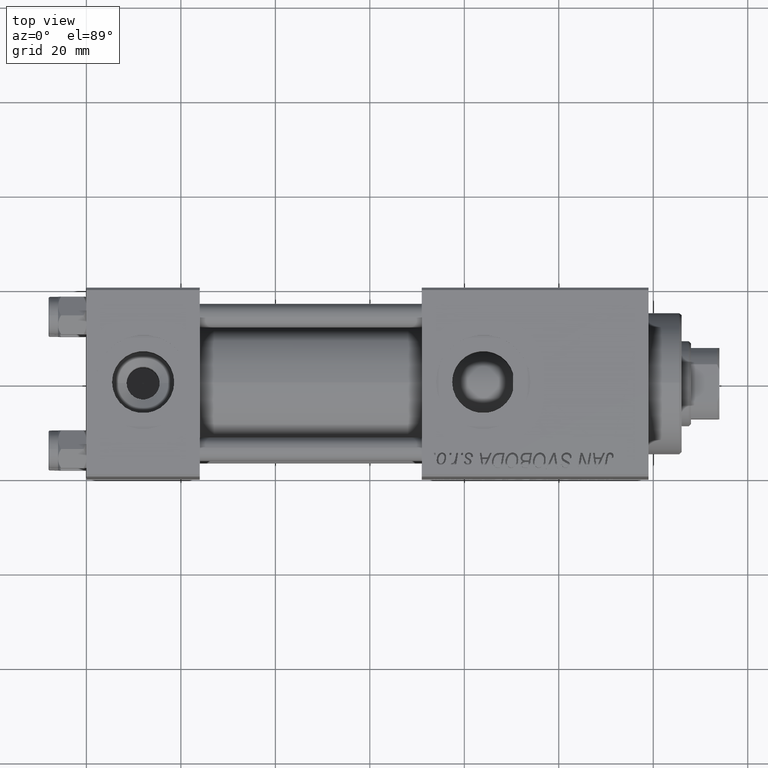
[diagram: clean part render]
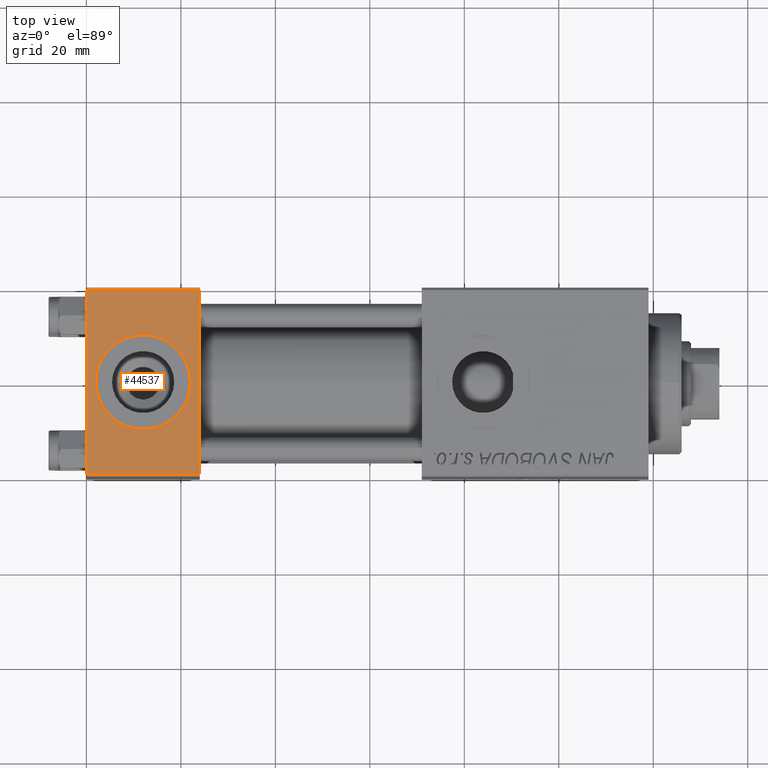
[diagram: same view with one face highlighted and labeled with its STEP entity id]
A machine part, top view. The second image highlights one B-rep face of the part: STEP entity #44537.
In plain terms, the highlighted planar face has unit normal (0, 0, -1).
Its self-contained STEP definition (entity closure, byte-faithful):
#405 = AXIS2_PLACEMENT_3D ( 'NONE', #37165, #13263, #5128 ) ;
#591 = AXIS2_PLACEMENT_3D ( 'NONE', #33102, #29175, #13141 ) ;
#720 = EDGE_CURVE ( 'NONE', #38897, #5996, #44022, .T. ) ;
#1160 = AXIS2_PLACEMENT_3D ( 'NONE', #25481, #21270, #44405 ) ;
#1687 = EDGE_CURVE ( 'NONE', #22121, #6410, #50454, .T. ) ;
#4271 = CARTESIAN_POINT ( 'NONE',  ( 2.000000000000003553, 1.224646799147354440E-15, 19.99999999999999645 ) ) ;
#4425 = VECTOR ( 'NONE', #32317, 1000.000000000000000 ) ;
#5128 = DIRECTION ( 'NONE',  ( 1.000000000000000000, 0.000000000000000000, 0.000000000000000000 ) ) ;
#5996 = VERTEX_POINT ( 'NONE', #4271 ) ;
#6410 = VERTEX_POINT ( 'NONE', #35007 ) ;
#8161 = LINE ( 'NONE', #35743, #4425 ) ;
#8227 = CARTESIAN_POINT ( 'NONE',  ( 22.00000000000000000, 1.540743955509788682E-30, 19.99999999999999645 ) ) ;
#9811 = CIRCLE ( 'NONE', #591, 9.999999999999998224 ) ;
#11047 = DIRECTION ( 'NONE',  ( 0.000000000000000000, -1.000000000000000000, -2.602085213965210149E-16 ) ) ;
#11854 = EDGE_CURVE ( 'NONE', #6410, #34470, #25421, .T. ) ;
#12708 = VECTOR ( 'NONE', #33033, 1000.000000000000000 ) ;
#13141 = DIRECTION ( 'NONE',  ( 1.000000000000000000, 0.000000000000000000, 0.000000000000000000 ) ) ;
#13263 = DIRECTION ( 'NONE',  ( 0.000000000000000000, 0.000000000000000000, 1.000000000000000000 ) ) ;
#13388 = FACE_BOUND ( 'NONE', #44826, .T. ) ;
#13955 = CARTESIAN_POINT ( 'NONE',  ( 24.00000000000000000, 20.00000000000000000, 20.00000000000000000 ) ) ;
#14472 = CARTESIAN_POINT ( 'NONE',  ( 0.000000000000000000, 20.00000000000000000, 20.00000000000000000 ) ) ;
#15117 = ORIENTED_EDGE ( 'NONE', *, *, #51403, .F. ) ;
#17359 = ORIENTED_EDGE ( 'NONE', *, *, #720, .F. ) ;
#18147 = CARTESIAN_POINT ( 'NONE',  ( 24.00000000000000000, -19.49999999999999289, 19.99999999999998934 ) ) ;
#18939 = LINE ( 'NONE', #13955, #36578 ) ;
#20501 = FACE_OUTER_BOUND ( 'NONE', #28052, .T. ) ;
#21270 = DIRECTION ( 'NONE',  ( 0.000000000000000000, 2.602085213965210149E-16, -1.000000000000000000 ) ) ;
#21391 = ORIENTED_EDGE ( 'NONE', *, *, #11854, .T. ) ;
#21731 = VECTOR ( 'NONE', #11047, 1000.000000000000000 ) ;
#22121 = VERTEX_POINT ( 'NONE', #26643 ) ;
#22211 = CARTESIAN_POINT ( 'NONE',  ( 24.00000000000000000, 19.50000000000000000, 20.00000000000000000 ) ) ;
#25421 = LINE ( 'NONE', #37740, #12708 ) ;
#25481 = CARTESIAN_POINT ( 'NONE',  ( 24.00000000000000000, 20.00000000000000000, 20.00000000000000000 ) ) ;
#25528 = VERTEX_POINT ( 'NONE', #22211 ) ;
#26643 = CARTESIAN_POINT ( 'NONE',  ( 0.000000000000000000, 19.50000000000000000, 20.00000000000000000 ) ) ;
#28007 = EDGE_CURVE ( 'NONE', #5996, #38897, #9811, .T. ) ;
#28052 = EDGE_LOOP ( 'NONE', ( #34226, #21391, #15117, #33890 ) ) ;
#29175 = DIRECTION ( 'NONE',  ( 0.000000000000000000, 0.000000000000000000, 1.000000000000000000 ) ) ;
#32317 = DIRECTION ( 'NONE',  ( -1.000000000000000000, 0.000000000000000000, 0.000000000000000000 ) ) ;
#33033 = DIRECTION ( 'NONE',  ( 1.000000000000000000, 0.000000000000000000, 0.000000000000000000 ) ) ;
#33102 = CARTESIAN_POINT ( 'NONE',  ( 12.00000000000000000, 1.540743955509788682E-30, 19.99999999999999645 ) ) ;
#33890 = ORIENTED_EDGE ( 'NONE', *, *, #39097, .T. ) ;
#34226 = ORIENTED_EDGE ( 'NONE', *, *, #1687, .T. ) ;
#34470 = VERTEX_POINT ( 'NONE', #18147 ) ;
#35007 = CARTESIAN_POINT ( 'NONE',  ( 0.000000000000000000, -19.49999999999999289, 19.99999999999998934 ) ) ;
#35743 = CARTESIAN_POINT ( 'NONE',  ( 0.000000000000000000, 19.50000000000000000, 20.00000000000000000 ) ) ;
#36578 = VECTOR ( 'NONE', #42313, 1000.000000000000000 ) ;
#37165 = CARTESIAN_POINT ( 'NONE',  ( 12.00000000000000000, 1.540743955509788682E-30, 19.99999999999999645 ) ) ;
#37740 = CARTESIAN_POINT ( 'NONE',  ( 24.00000000000000000, -19.49999999999999289, 19.99999999999998934 ) ) ;
#38897 = VERTEX_POINT ( 'NONE', #8227 ) ;
#39097 = EDGE_CURVE ( 'NONE', #25528, #22121, #8161, .T. ) ;
#42313 = DIRECTION ( 'NONE',  ( 0.000000000000000000, -1.000000000000000000, -2.602085213965210149E-16 ) ) ;
#44022 = CIRCLE ( 'NONE', #405, 9.999999999999998224 ) ;
#44405 = DIRECTION ( 'NONE',  ( 0.000000000000000000, 1.000000000000000000, 2.602085213965210149E-16 ) ) ;
#44537 = ADVANCED_FACE ( 'NONE', ( #13388, #20501 ), #48353, .F. ) ;
#44826 = EDGE_LOOP ( 'NONE', ( #17359, #50851 ) ) ;
#48353 = PLANE ( 'NONE',  #1160 ) ;
#50454 = LINE ( 'NONE', #14472, #21731 ) ;
#50851 = ORIENTED_EDGE ( 'NONE', *, *, #28007, .F. ) ;
#51403 = EDGE_CURVE ( 'NONE', #25528, #34470, #18939, .T. ) ;